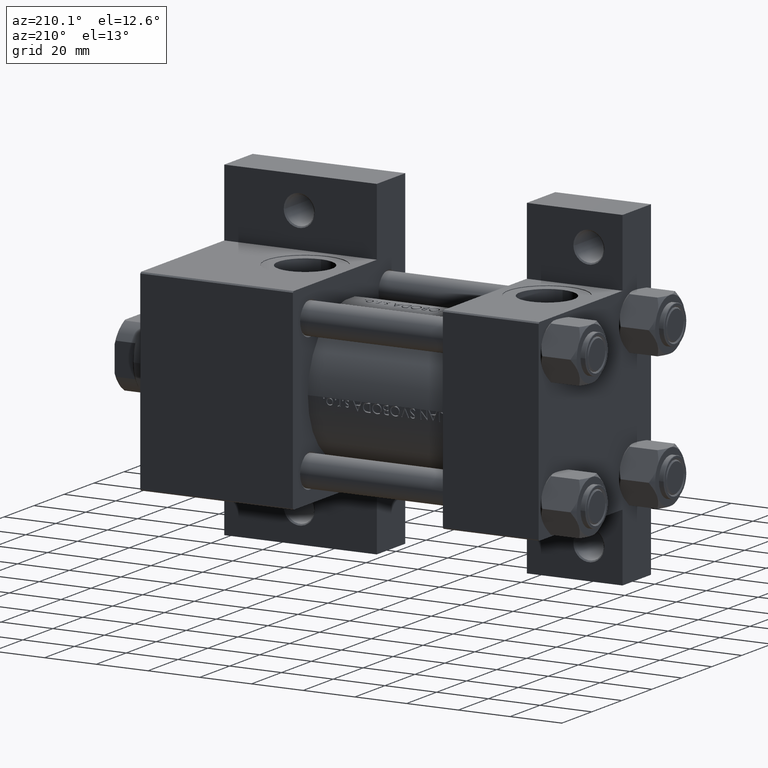
[diagram: clean part render]
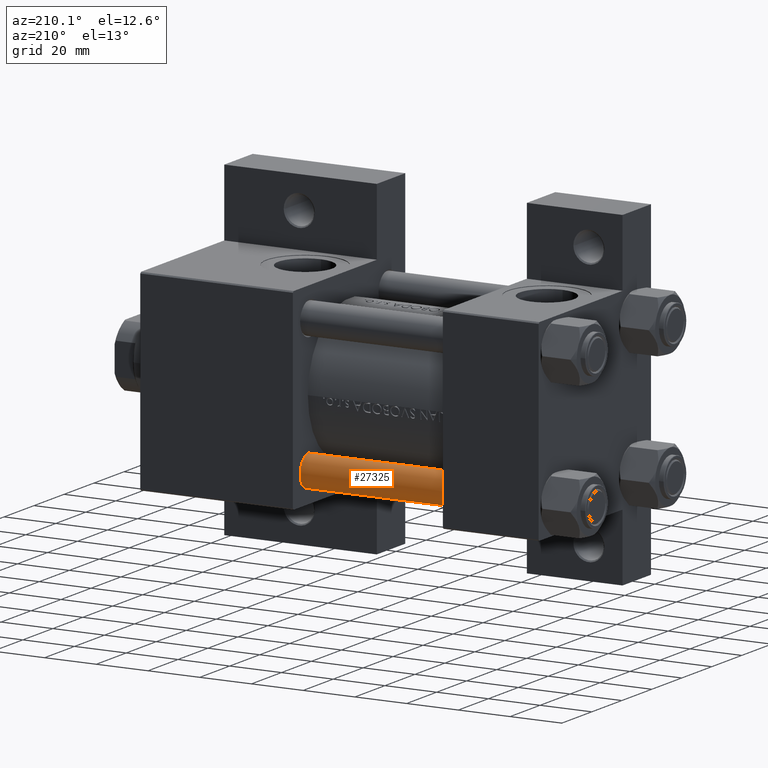
[diagram: same view with one face highlighted and labeled with its STEP entity id]
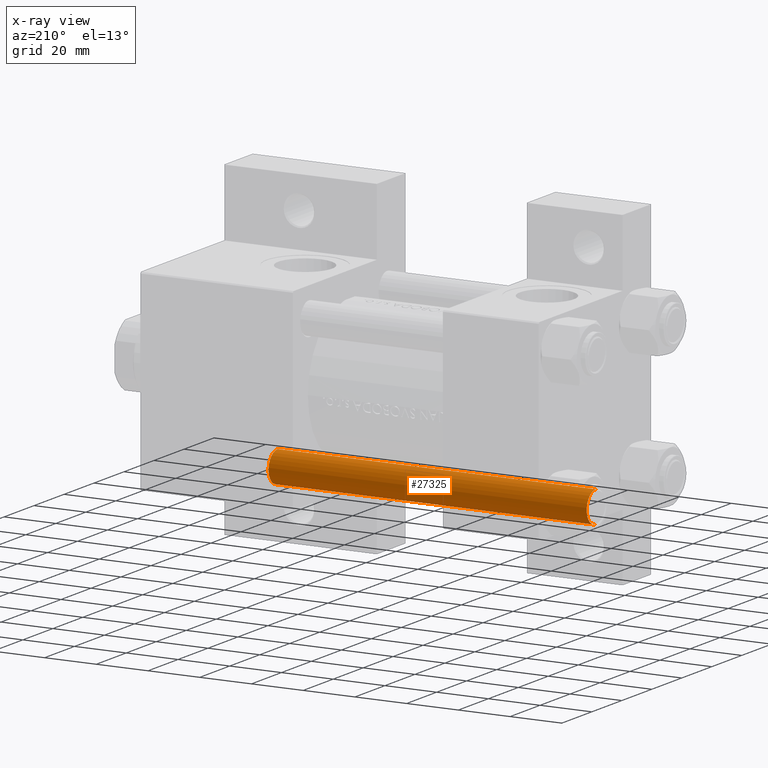
[diagram: x-ray of the same camera — body ghosted, the highlighted face saturated]
A machine part, auxiliary view. The second image highlights one B-rep face of the part: STEP entity #27325.
The next image is the same camera in x-ray: the body ghosted, the highlighted face saturated — about 0% of this face is hidden behind the body in this view.
In plain terms, the highlighted cylindrical surface (edge-blend (fillet) strip) has radius 6 mm, axis along (1, -0, -0).
Its self-contained STEP definition (entity closure, byte-faithful):
#179 = DIRECTION ( 'NONE',  ( -0.000000000000000000, -0.000000000000000000, 1.000000000000000000 ) ) ;
#1535 = CARTESIAN_POINT ( 'NONE',  ( -6.000000000000000888, 0.000000000000000000, 124.0000000000000000 ) ) ;
#2683 = DIRECTION ( 'NONE',  ( -0.000000000000000000, -0.000000000000000000, -1.000000000000000000 ) ) ;
#4118 = CARTESIAN_POINT ( 'NONE',  ( 6.000000000000000888, 7.347880794884120722E-16, 123.5000000000000426 ) ) ;
#4469 = CARTESIAN_POINT ( 'NONE',  ( -6.000000000000000888, 0.000000000000000000, 0.4999999999999865663 ) ) ;
#6382 = EDGE_CURVE ( 'NONE', #30363, #17724, #34526, .T. ) ;
#6566 = CARTESIAN_POINT ( 'NONE',  ( 0.000000000000000000, 0.000000000000000000, 124.0000000000000000 ) ) ;
#7633 = DIRECTION ( 'NONE',  ( 1.000000000000000000, 0.000000000000000000, 0.000000000000000000 ) ) ;
#8281 = AXIS2_PLACEMENT_3D ( 'NONE', #37004, #179, #7633 ) ;
#12173 = ORIENTED_EDGE ( 'NONE', *, *, #19154, .T. ) ;
#17359 = DIRECTION ( 'NONE',  ( 0.000000000000000000, 0.000000000000000000, -1.000000000000000000 ) ) ;
#17595 = CARTESIAN_POINT ( 'NONE',  ( 0.000000000000000000, 0.000000000000000000, 123.5000000000000426 ) ) ;
#17656 = ORIENTED_EDGE ( 'NONE', *, *, #6382, .F. ) ;
#17724 = VERTEX_POINT ( 'NONE', #4469 ) ;
#19154 = EDGE_CURVE ( 'NONE', #45350, #17724, #38285, .T. ) ;
#20893 = ORIENTED_EDGE ( 'NONE', *, *, #22096, .T. ) ;
#20968 = LINE ( 'NONE', #39742, #30697 ) ;
#22096 = EDGE_CURVE ( 'NONE', #30363, #29929, #26853, .T. ) ;
#22154 = EDGE_CURVE ( 'NONE', #29929, #45350, #20968, .T. ) ;
#25058 = DIRECTION ( 'NONE',  ( 1.000000000000000000, 0.000000000000000000, 0.000000000000000000 ) ) ;
#25098 = DIRECTION ( 'NONE',  ( -1.000000000000000000, 0.000000000000000000, 0.000000000000000000 ) ) ;
#26093 = AXIS2_PLACEMENT_3D ( 'NONE', #17595, #17359, #25058 ) ;
#26853 = CIRCLE ( 'NONE', #26093, 6.000000000000000888 ) ;
#27325 = ADVANCED_FACE ( 'NONE', ( #28949 ), #39546, .T. ) ;
#28949 = FACE_OUTER_BOUND ( 'NONE', #40956, .T. ) ;
#29834 = ORIENTED_EDGE ( 'NONE', *, *, #22154, .T. ) ;
#29929 = VERTEX_POINT ( 'NONE', #4118 ) ;
#30363 = VERTEX_POINT ( 'NONE', #42061 ) ;
#30697 = VECTOR ( 'NONE', #2683, 1000.000000000000000 ) ;
#34526 = LINE ( 'NONE', #1535, #47491 ) ;
#35001 = DIRECTION ( 'NONE',  ( -0.000000000000000000, -0.000000000000000000, -1.000000000000000000 ) ) ;
#37004 = CARTESIAN_POINT ( 'NONE',  ( 0.000000000000000000, 0.000000000000000000, 0.4999999999999865663 ) ) ;
#38285 = CIRCLE ( 'NONE', #8281, 6.000000000000000888 ) ;
#39546 = CYLINDRICAL_SURFACE ( 'NONE', #45303, 6.000000000000000888 ) ;
#39742 = CARTESIAN_POINT ( 'NONE',  ( 6.000000000000000888, 7.347880794884120722E-16, 124.0000000000000000 ) ) ;
#40956 = EDGE_LOOP ( 'NONE', ( #20893, #29834, #12173, #17656 ) ) ;
#41242 = CARTESIAN_POINT ( 'NONE',  ( 6.000000000000000888, 7.347880794884120722E-16, 0.4999999999999865663 ) ) ;
#42061 = CARTESIAN_POINT ( 'NONE',  ( -6.000000000000000888, 0.000000000000000000, 123.5000000000000426 ) ) ;
#43615 = DIRECTION ( 'NONE',  ( -0.000000000000000000, -0.000000000000000000, -1.000000000000000000 ) ) ;
#45303 = AXIS2_PLACEMENT_3D ( 'NONE', #6566, #43615, #25098 ) ;
#45350 = VERTEX_POINT ( 'NONE', #41242 ) ;
#47491 = VECTOR ( 'NONE', #35001, 1000.000000000000000 ) ;